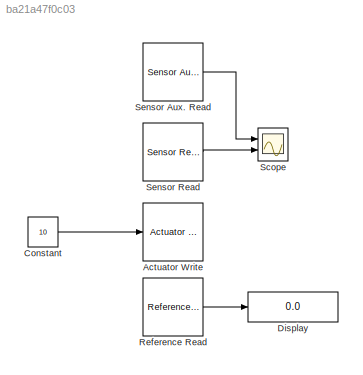
MODEL slx_ba21a47f0c03
KIND model
CONFIG AbsTol = auto
CONFIG EnableMultiTasking = on
CONFIG FixedStep = 0.010
CONFIG MaxStep = auto
CONFIG MinStep = auto
CONFIG RelTol = 1e-3
CONFIG SampleTimeConstraint = Unconstrained
CONFIG Solver = FixedStepDiscrete
CONFIG SolverName = FixedStepDiscrete
CONFIG StartTime = 0.0
CONFIG StopTime = inf
BLOCK [Reference] Actuator Write  REF=OptoLibrary/Actuator Write
  Ports = [1]
  SourceBlock = OptoLibrary/Actuator Write
  SourceProductName = AutomationShield
BLOCK [Constant] Constant
  Value = 10
BLOCK [Display] Display
  Decimation = 1
  Ports = [1]
BLOCK [Reference] Reference Read  REF=OptoLibrary/Reference Read
  Ports = [0, 1]
  SourceBlock = OptoLibrary/Reference Read
  SourceProductName = AutomationShield
BLOCK [Scope] Scope 
  Floating = off
  NumInputPorts = 2
  Ports = [2]
  ScopeSpecificationString = Simulink.scopes.TimeScopeBlockCfg('CurrentConfiguration', extmgr.ConfigurationSet(extmgr.Configuration('Core','General UI',true),extmgr.Configuration('Core','Source UI',true),extmgr.Configuration('Sources','WiredSimulink',true),extmgr.Configuration('Visuals','Time Domain',true,'SerializedDisplays',{struct('MinYLimReal','2.26685','MaxYLimReal','3.13354','YLabelReal','','MinYLimMag','2.26685','MaxYL...<+1378ch>
BLOCK [Reference] Sensor Aux. Read  REF=OptoLibrary/Sensor Aux. Read
  Ports = [0, 1]
  SourceBlock = OptoLibrary/Sensor Aux. Read
  SourceProductName = AutomationShield
BLOCK [Reference] Sensor Read  REF=OptoLibrary/Sensor Read
  Ports = [0, 1]
  SourceBlock = OptoLibrary/Sensor Read
  SourceProductName = AutomationShield
LINE Constant:1 -> Actuator Write:1
LINE Reference Read:1 -> Display:1
LINE Sensor Aux. Read:1 -> Scope :1
LINE Sensor Read:1 -> Scope :2
